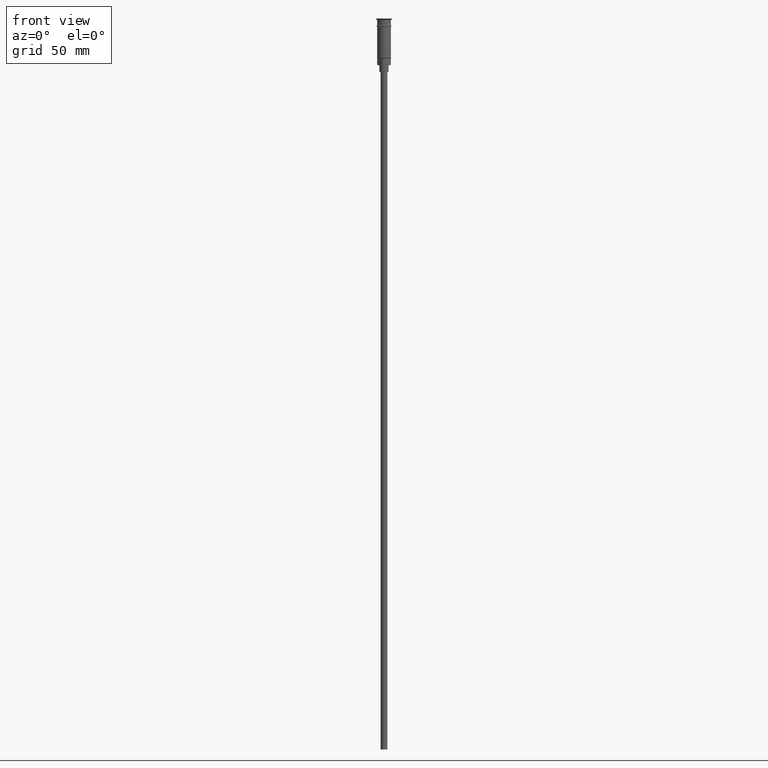
[diagram: clean part render]
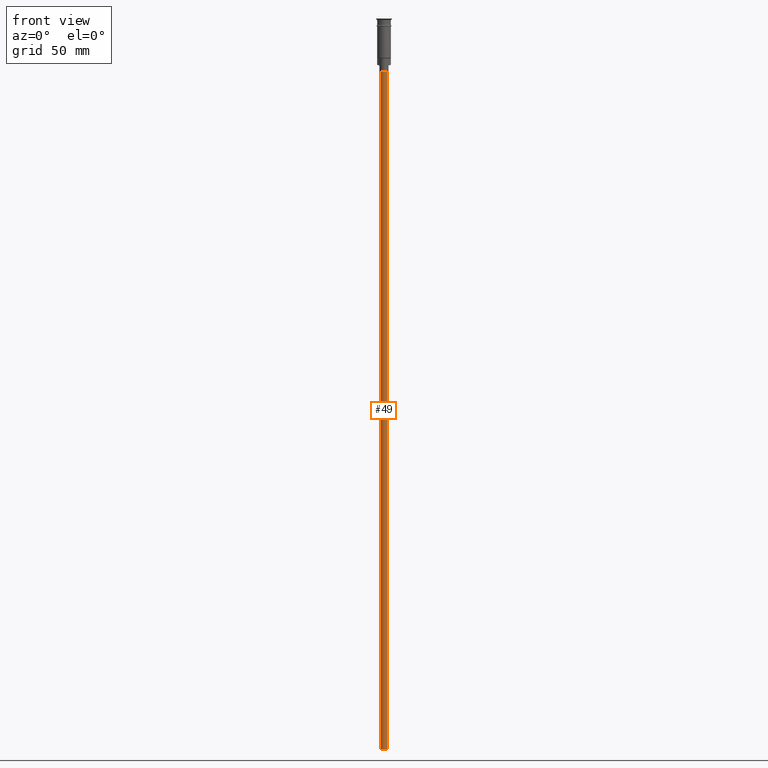
[diagram: same view with one face highlighted and labeled with its STEP entity id]
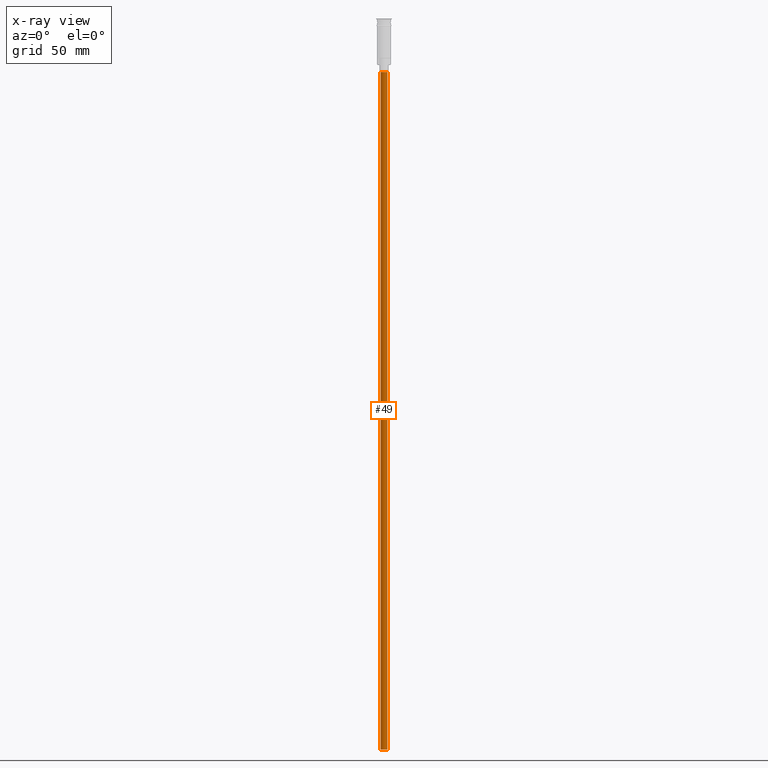
[diagram: x-ray of the same camera — body ghosted, the highlighted face saturated]
A machine part, front view. The second image highlights one B-rep face of the part: STEP entity #49.
The next image is the same camera in x-ray: the body ghosted, the highlighted face saturated — about 0% of this face is hidden behind the body in this view.
In plain terms, the highlighted cylindrical surface (edge-blend (fillet) strip) has radius 1.5 mm, axis along (-0, -0, 1).
Its self-contained STEP definition (entity closure, byte-faithful):
#49 = ADVANCED_FACE ( 'NONE', ( #334 ), #439, .T. ) ;
#131 = VECTOR ( 'NONE', #1316, 1000.000000000000000 ) ;
#186 = EDGE_CURVE ( 'NONE', #407, #883, #1570, .T. ) ;
#232 = CIRCLE ( 'NONE', #1185, 1.500000000000000222 ) ;
#309 = DIRECTION ( 'NONE',  ( -0.000000000000000000, -0.000000000000000000, 1.000000000000000000 ) ) ;
#334 = FACE_OUTER_BOUND ( 'NONE', #1348, .T. ) ;
#340 = DIRECTION ( 'NONE',  ( 1.000000000000000000, 0.000000000000000000, 0.000000000000000000 ) ) ;
#407 = VERTEX_POINT ( 'NONE', #842 ) ;
#425 = VECTOR ( 'NONE', #1074, 1000.000000000000000 ) ;
#439 = CYLINDRICAL_SURFACE ( 'NONE', #1109, 1.500000000000000222 ) ;
#467 = EDGE_CURVE ( 'NONE', #1477, #478, #812, .T. ) ;
#478 = VERTEX_POINT ( 'NONE', #1133 ) ;
#485 = CARTESIAN_POINT ( 'NONE',  ( -1.500000000000000222, 1.836970198721030181E-16, -320.5000000000000000 ) ) ;
#514 = ORIENTED_EDGE ( 'NONE', *, *, #467, .F. ) ;
#574 = CARTESIAN_POINT ( 'NONE',  ( -1.500000000000000222, 1.836970198721030181E-16, -320.5000000000000000 ) ) ;
#618 = ORIENTED_EDGE ( 'NONE', *, *, #1062, .F. ) ;
#767 = DIRECTION ( 'NONE',  ( 0.000000000000000000, 0.000000000000000000, -1.000000000000000000 ) ) ;
#797 = CARTESIAN_POINT ( 'NONE',  ( 0.000000000000000000, 0.000000000000000000, -320.5000000000000000 ) ) ;
#812 = LINE ( 'NONE', #574, #425 ) ;
#842 = CARTESIAN_POINT ( 'NONE',  ( 1.500000000000000222, 0.000000000000000000, -320.5000000000000000 ) ) ;
#883 = VERTEX_POINT ( 'NONE', #922 ) ;
#921 = CARTESIAN_POINT ( 'NONE',  ( 1.500000000000000222, 0.000000000000000000, -320.5000000000000000 ) ) ;
#922 = CARTESIAN_POINT ( 'NONE',  ( 1.500000000000000222, 0.000000000000000000, -23.50000000000000000 ) ) ;
#924 = ORIENTED_EDGE ( 'NONE', *, *, #1212, .T. ) ;
#954 = AXIS2_PLACEMENT_3D ( 'NONE', #1060, #767, #1184 ) ;
#1005 = CIRCLE ( 'NONE', #954, 1.500000000000000222 ) ;
#1038 = DIRECTION ( 'NONE',  ( 0.000000000000000000, 0.000000000000000000, -1.000000000000000000 ) ) ;
#1060 = CARTESIAN_POINT ( 'NONE',  ( 0.000000000000000000, 0.000000000000000000, -23.50000000000000000 ) ) ;
#1062 = EDGE_CURVE ( 'NONE', #407, #1477, #232, .T. ) ;
#1074 = DIRECTION ( 'NONE',  ( -0.000000000000000000, -0.000000000000000000, 1.000000000000000000 ) ) ;
#1109 = AXIS2_PLACEMENT_3D ( 'NONE', #1535, #309, #340 ) ;
#1133 = CARTESIAN_POINT ( 'NONE',  ( -1.500000000000000222, 1.836970198721030181E-16, -23.50000000000000000 ) ) ;
#1184 = DIRECTION ( 'NONE',  ( -1.000000000000000000, 0.000000000000000000, 0.000000000000000000 ) ) ;
#1185 = AXIS2_PLACEMENT_3D ( 'NONE', #797, #1038, #1427 ) ;
#1212 = EDGE_CURVE ( 'NONE', #883, #478, #1005, .T. ) ;
#1316 = DIRECTION ( 'NONE',  ( -0.000000000000000000, -0.000000000000000000, 1.000000000000000000 ) ) ;
#1348 = EDGE_LOOP ( 'NONE', ( #514, #618, #1369, #924 ) ) ;
#1369 = ORIENTED_EDGE ( 'NONE', *, *, #186, .T. ) ;
#1427 = DIRECTION ( 'NONE',  ( -1.000000000000000000, 0.000000000000000000, 0.000000000000000000 ) ) ;
#1477 = VERTEX_POINT ( 'NONE', #485 ) ;
#1535 = CARTESIAN_POINT ( 'NONE',  ( 0.000000000000000000, 0.000000000000000000, -320.5000000000000000 ) ) ;
#1570 = LINE ( 'NONE', #921, #131 ) ;